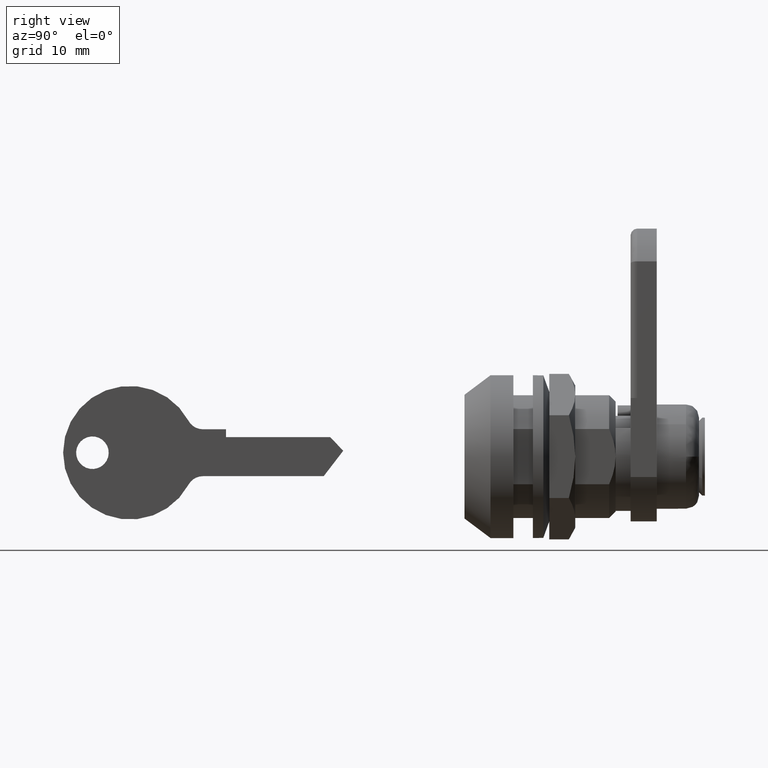
[diagram: clean part render]
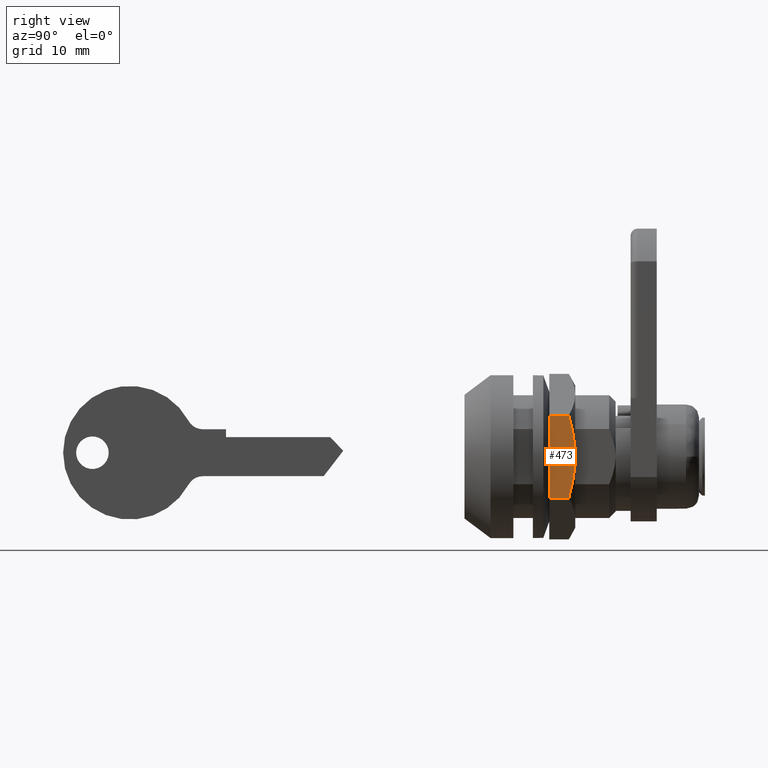
[diagram: same view with one face highlighted and labeled with its STEP entity id]
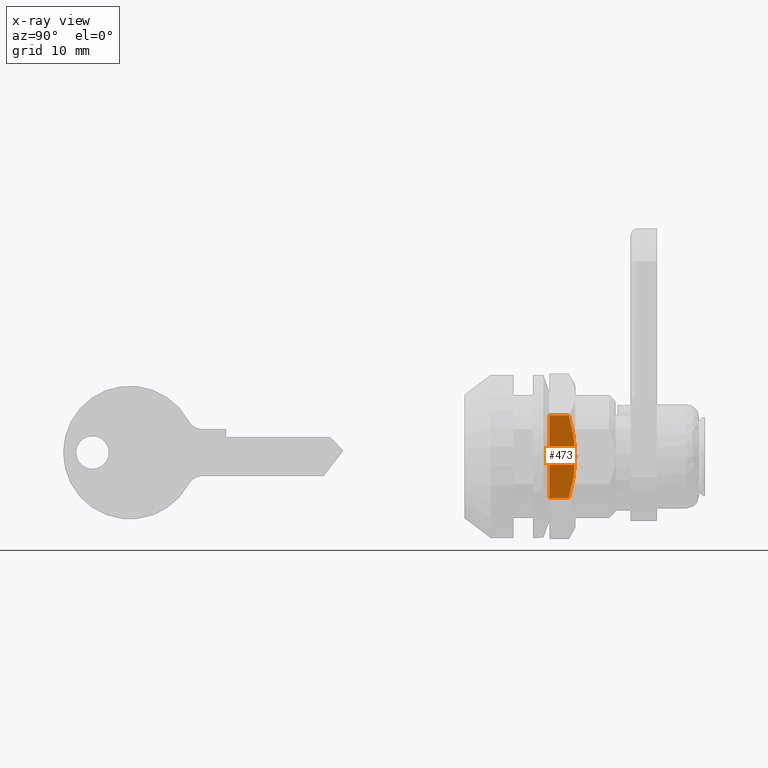
[diagram: x-ray of the same camera — body ghosted, the highlighted face saturated]
A machine part, right view. The second image highlights one B-rep face of the part: STEP entity #473.
The next image is the same camera in x-ray: the body ghosted, the highlighted face saturated — about 0% of this face is hidden behind the body in this view.
In plain terms, the highlighted planar face has unit normal (1, 0, 0).
Its self-contained STEP definition (entity closure, byte-faithful):
#473=ADVANCED_FACE('',(#1553),#1552,.T.);
#1552=PLANE('',#3549);
#1553=FACE_OUTER_BOUND('',#3550,.T.);
#3546=CARTESIAN_POINT('',(1.10000000000E+01,1.25995013427E+01,7.62113115038E+00));
#3547=DIRECTION('',(1.00000000000E+00,-0.00000000000E+00,0.00000000000E+00));
#3548=DIRECTION('',(0.00000000000E+00,0.00000000000E+00,-1.00000000000E+00));
#3549=AXIS2_PLACEMENT_3D('',#3546,#3547,#3548);
#3550=EDGE_LOOP('',(#4289,#4290,#4291,#4292,#4293));
#4289=ORIENTED_EDGE('',*,*,#4766,.F.);
#4290=ORIENTED_EDGE('',*,*,#4771,.T.);
#4291=ORIENTED_EDGE('',*,*,#4772,.T.);
#4292=ORIENTED_EDGE('',*,*,#4773,.T.);
#4293=ORIENTED_EDGE('',*,*,#4774,.F.);
#4766=EDGE_CURVE('',#6553,#6560,#6561,.T.);
#4771=EDGE_CURVE('',#6553,#6585,#6592,.T.);
#4772=EDGE_CURVE('',#6585,#6598,#6599,.T.);
#4773=EDGE_CURVE('',#6598,#6605,#6606,.T.);
#4774=EDGE_CURVE('',#6560,#6605,#6612,.T.);
#6553=VERTEX_POINT('',#8386);
#6560=VERTEX_POINT('',#8403);
#6561=LINE('',#8404,#8405);
#6585=VERTEX_POINT('',#8429);
#6592=(BOUNDED_CURVE() B_SPLINE_CURVE(3,(#8434,#8435,#8436,#8437,#8438,#8439,#8440,#8441,#8442,#8443),.UNSPECIFIED.,.F.,.F.) B_SPLINE_CURVE_WITH_KNOTS((4,2,2,2,4),(0.00000000000E+00,1.25000000000E-01,2.50000000000E-01,3.75000000000E-01,4.99866425939E-01),.UNSPECIFIED.) CURVE() GEOMETRIC_REPRESENTATION_ITEM() RATIONAL_B_SPLINE_CURVE((1.00000000000E+00,1.00000000000E+00,1.00000000000E+00,1.00000000000E+00,1.00000000000E+00,1.00000000000E+00,1.00000000000E+00,1.00000000000E+00,1.00000000000E+00,1.00000000000E+00)) REPRESENTATION_ITEM('') );
#6598=VERTEX_POINT('',#8444);
#6599=(BOUNDED_CURVE() B_SPLINE_CURVE(3,(#8445,#8446,#8447,#8448),.UNSPECIFIED.,.F.,.F.) B_SPLINE_CURVE_WITH_KNOTS((4,4),(4.99866425971E-01,1.00000000000E+00),.UNSPECIFIED.) CURVE() GEOMETRIC_REPRESENTATION_ITEM() RATIONAL_B_SPLINE_CURVE((1.00000000000E+00,1.00000000000E+00,1.00000000000E+00,1.00000000000E+00)) REPRESENTATION_ITEM('') );
#6605=VERTEX_POINT('',#8449);
#6606=LINE('',#8450,#8451);
#6612=LINE('',#8453,#8454);
#8386=CARTESIAN_POINT('',(1.10000000000E+01,1.60178354191E+01,-6.35141150379E+00));
#8403=CARTESIAN_POINT('',(1.10000000000E+01,1.30000000010E+01,-6.35141150379E+00));
#8404=CARTESIAN_POINT('',(1.10000000000E+01,1.60178354191E+01,-6.35141150379E+00));
#8405=VECTOR('',#8406,3.01783541810E+00);
#8406=DIRECTION('',(0.00000000000E+00,-1.00000000000E+00,0.00000000000E+00));
#8429=CARTESIAN_POINT('',(1.10000000000E+01,1.70000000010E+01,2.10850000000E-16));
#8434=CARTESIAN_POINT('',(1.10000000000E+01,1.60178354191E+01,-6.35141150379E+00));
#8435=CARTESIAN_POINT('',(1.10000000000E+01,1.61669357758E+01,-5.83469593801E+00));
#8436=CARTESIAN_POINT('',(1.10000000000E+01,1.63038168819E+01,-5.31322844248E+00));
#8437=CARTESIAN_POINT('',(1.10000000000E+01,1.65466872534E+01,-4.25827996027E+00));
#8438=CARTESIAN_POINT('',(1.10000000000E+01,1.66515339728E+01,-3.72943682213E+00));
#8439=CARTESIAN_POINT('',(1.10000000000E+01,1.68224480452E+01,-2.66886891375E+00));
#8440=CARTESIAN_POINT('',(1.10000000000E+01,1.68884890459E+01,-2.13709453630E+00));
#8441=CARTESIAN_POINT('',(1.10000000000E+01,1.69772578747E+01,-1.07079462162E+00));
#8442=CARTESIAN_POINT('',(1.10000000000E+01,1.69999997621E+01,-5.36270163616E-01));
#8443=CARTESIAN_POINT('',(1.10000000000E+01,1.70000000010E+01,2.10850000000E-16));
#8444=CARTESIAN_POINT('',(1.10000000000E+01,1.60179830111E+01,6.35090000000E+00));
#8445=CARTESIAN_POINT('',(1.10000000000E+01,1.70000000010E+01,2.10850000000E-16));
#8446=CARTESIAN_POINT('',(1.10000000000E+01,1.70049865837E+01,2.15288856203E+00));
#8447=CARTESIAN_POINT('',(1.10000000000E+01,1.66155795607E+01,4.28934188757E+00));
#8448=CARTESIAN_POINT('',(1.10000000000E+01,1.60179830111E+01,6.35090000000E+00));
#8449=CARTESIAN_POINT('',(1.10000000000E+01,1.30000000010E+01,6.35090000000E+00));
#8450=CARTESIAN_POINT('',(1.10000000000E+01,1.60179830111E+01,6.35090000000E+00));
#8451=VECTOR('',#8452,3.01798301010E+00);
#8452=DIRECTION('',(0.00000000000E+00,-1.00000000000E+00,0.00000000000E+00));
#8453=CARTESIAN_POINT('',(1.10000000000E+01,1.30000000010E+01,-6.35141150379E+00));
#8454=VECTOR('',#8455,1.27023115038E+01);
#8455=DIRECTION('',(0.00000000000E+00,0.00000000000E+00,1.00000000000E+00));